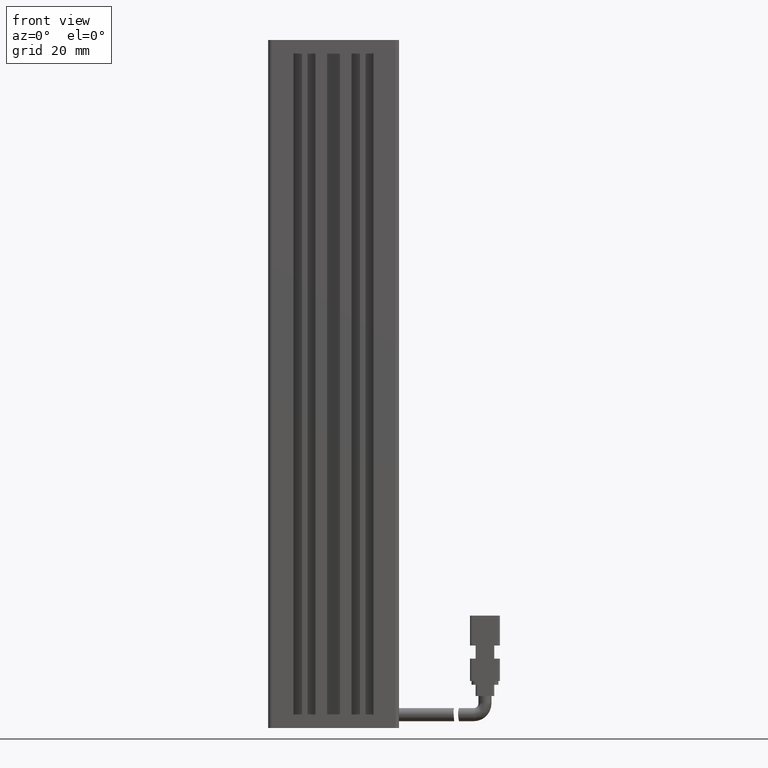
[diagram: clean part render]
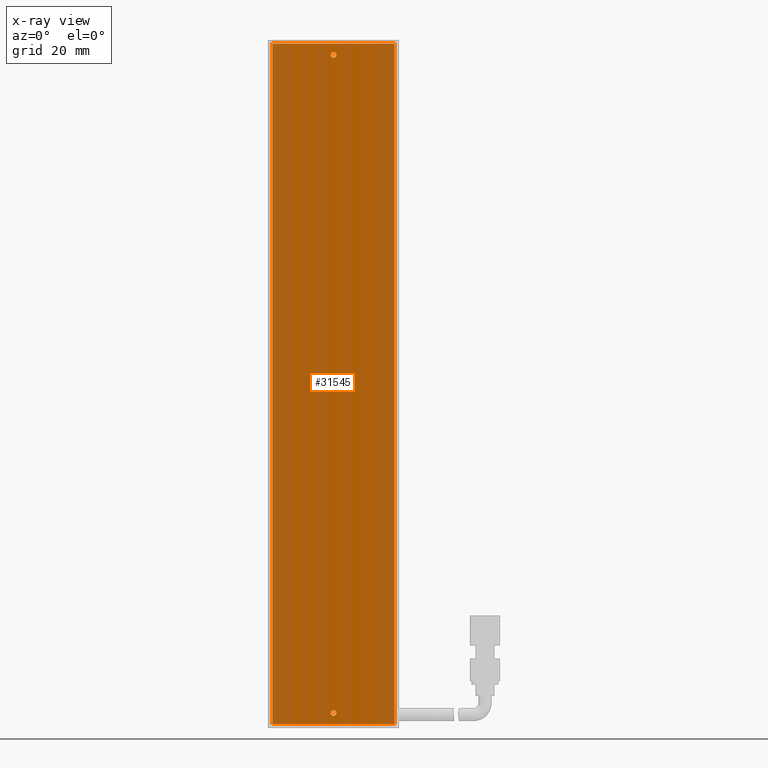
[diagram: x-ray — body ghosted, one internal face saturated and labeled with its STEP entity id]
A machine part, front view, then the same camera in x-ray: the body is ghosted and one INTERNAL B-rep face — a face not visible from any outside direction — is saturated and labeled: STEP entity #31545.
In plain terms, the highlighted planar face has unit normal (0, 1, 0).
Its self-contained STEP definition (entity closure, byte-faithful):
#2018 = LINE ( 'NONE', #31250, #5855 ) ;
#3994 = ORIENTED_EDGE ( 'NONE', *, *, #69774, .F. ) ;
#4006 = DIRECTION ( 'NONE',  ( 1.000000000000000000, 0.0000000000000000000, 1.387778780781445400E-016 ) ) ;
#4139 = PLANE ( 'NONE',  #65523 ) ;
#4851 = EDGE_CURVE ( 'NONE', #28927, #54681, #23525, .T. ) ;
#5855 = VECTOR ( 'NONE', #31538, 1000.000000000000000 ) ;
#9158 = ORIENTED_EDGE ( 'NONE', *, *, #56263, .F. ) ;
#10272 = CARTESIAN_POINT ( 'NONE',  ( 57.27537974683544100, 32.09073232304837800, -23.99999999999996100 ) ) ;
#10713 = EDGE_LOOP ( 'NONE', ( #25056, #59752 ) ) ;
#11221 = ORIENTED_EDGE ( 'NONE', *, *, #24218, .F. ) ;
#11229 = CARTESIAN_POINT ( 'NONE',  ( 40.92537974683543900, 32.09073232304837800, -202.2499999999999700 ) ) ;
#11487 = VERTEX_POINT ( 'NONE', #11229 ) ;
#12076 = VERTEX_POINT ( 'NONE', #43116 ) ;
#13379 = CARTESIAN_POINT ( 'NONE',  ( 40.92537974683543900, 32.09073232304837800, -203.7499999999999700 ) ) ;
#15294 = CARTESIAN_POINT ( 'NONE',  ( 40.92537974683542500, 32.09073232304837800, -26.99999999999996400 ) ) ;
#16444 = CARTESIAN_POINT ( 'NONE',  ( 40.92537974683543900, 32.09073232304837800, -202.9999999999999700 ) ) ;
#18162 = CARTESIAN_POINT ( 'NONE',  ( 24.57537974683541300, 32.09073232304837800, -23.99999999999996400 ) ) ;
#18500 = VECTOR ( 'NONE', #4006, 1000.000000000000000 ) ;
#20571 = DIRECTION ( 'NONE',  ( -0.0000000000000000000, -1.000000000000000000, -0.0000000000000000000 ) ) ;
#21578 = DIRECTION ( 'NONE',  ( -0.0000000000000000000, -1.000000000000000000, -0.0000000000000000000 ) ) ;
#21950 = CARTESIAN_POINT ( 'NONE',  ( 40.92537974683542500, 32.09073232304837800, -26.99999999999996400 ) ) ;
#23275 = FACE_BOUND ( 'NONE', #48187, .T. ) ;
#23525 = CIRCLE ( 'NONE', #32336, 0.7500000000000006700 ) ;
#24218 = EDGE_CURVE ( 'NONE', #11487, #73712, #46506, .T. ) ;
#25056 = ORIENTED_EDGE ( 'NONE', *, *, #4851, .F. ) ;
#25175 = FACE_OUTER_BOUND ( 'NONE', #46994, .T. ) ;
#28091 = VECTOR ( 'NONE', #30947, 1000.000000000000000 ) ;
#28622 = LINE ( 'NONE', #45744, #63728 ) ;
#28679 = DIRECTION ( 'NONE',  ( -0.0000000000000000000, -1.000000000000000000, -0.0000000000000000000 ) ) ;
#28927 = VERTEX_POINT ( 'NONE', #57686 ) ;
#30947 = DIRECTION ( 'NONE',  ( -1.387778780781445400E-016, 0.0000000000000000000, 1.000000000000000000 ) ) ;
#31044 = CIRCLE ( 'NONE', #45202, 0.7500000000000006700 ) ;
#31190 = CIRCLE ( 'NONE', #67158, 0.7500000000000006700 ) ;
#31250 = CARTESIAN_POINT ( 'NONE',  ( 57.27537974683546900, 32.09073232304837800, -205.9999999999999700 ) ) ;
#31538 = DIRECTION ( 'NONE',  ( -1.000000000000000000, -0.0000000000000000000, -1.387778780781445400E-016 ) ) ;
#31545 = ADVANCED_FACE ( 'NONE', ( #25175, #39567, #23275 ), #4139, .F. ) ;
#31657 = ORIENTED_EDGE ( 'NONE', *, *, #42744, .F. ) ;
#32336 = AXIS2_PLACEMENT_3D ( 'NONE', #21950, #64188, #39898 ) ;
#33903 = CARTESIAN_POINT ( 'NONE',  ( 40.92537974683543900, 32.09073232304837800, -202.9999999999999700 ) ) ;
#36269 = VERTEX_POINT ( 'NONE', #45624 ) ;
#36936 = ORIENTED_EDGE ( 'NONE', *, *, #42519, .F. ) ;
#37458 = VERTEX_POINT ( 'NONE', #58169 ) ;
#39567 = FACE_BOUND ( 'NONE', #10713, .T. ) ;
#39898 = DIRECTION ( 'NONE',  ( 0.0000000000000000000, 0.0000000000000000000, 1.000000000000000000 ) ) ;
#40575 = CARTESIAN_POINT ( 'NONE',  ( 57.27537974683544100, 32.09073232304837800, -23.99999999999996100 ) ) ;
#42519 = EDGE_CURVE ( 'NONE', #70292, #37458, #2018, .T. ) ;
#42539 = AXIS2_PLACEMENT_3D ( 'NONE', #33903, #21578, #70974 ) ;
#42744 = EDGE_CURVE ( 'NONE', #36269, #70292, #28622, .T. ) ;
#43116 = CARTESIAN_POINT ( 'NONE',  ( 24.57537974683542700, 32.09073232304837800, -23.99999999999996400 ) ) ;
#45202 = AXIS2_PLACEMENT_3D ( 'NONE', #15294, #20571, #45597 ) ;
#45597 = DIRECTION ( 'NONE',  ( 0.0000000000000000000, 0.0000000000000000000, 1.000000000000000000 ) ) ;
#45624 = CARTESIAN_POINT ( 'NONE',  ( 57.27537974683544100, 32.09073232304837800, -23.99999999999996100 ) ) ;
#45744 = CARTESIAN_POINT ( 'NONE',  ( 57.27537974683544100, 32.09073232304837800, -23.99999999999996100 ) ) ;
#46506 = CIRCLE ( 'NONE', #42539, 0.7500000000000006700 ) ;
#46994 = EDGE_LOOP ( 'NONE', ( #9158, #36936, #31657, #71631 ) ) ;
#48049 = LINE ( 'NONE', #18162, #28091 ) ;
#48187 = EDGE_LOOP ( 'NONE', ( #11221, #3994 ) ) ;
#49469 = EDGE_CURVE ( 'NONE', #54681, #28927, #31044, .T. ) ;
#49936 = LINE ( 'NONE', #40575, #18500 ) ;
#50078 = EDGE_CURVE ( 'NONE', #12076, #36269, #49936, .T. ) ;
#52793 = DIRECTION ( 'NONE',  ( 0.0000000000000000000, 1.000000000000000000, 0.0000000000000000000 ) ) ;
#52894 = CARTESIAN_POINT ( 'NONE',  ( 57.27537974683545500, 32.09073232304837800, -205.9999999999999700 ) ) ;
#53089 = DIRECTION ( 'NONE',  ( 0.0000000000000000000, 0.0000000000000000000, 1.000000000000000000 ) ) ;
#54108 = CARTESIAN_POINT ( 'NONE',  ( 40.92537974683542500, 32.09073232304837800, -27.74999999999996400 ) ) ;
#54681 = VERTEX_POINT ( 'NONE', #54108 ) ;
#56263 = EDGE_CURVE ( 'NONE', #37458, #12076, #48049, .T. ) ;
#57686 = CARTESIAN_POINT ( 'NONE',  ( 40.92537974683542500, 32.09073232304837800, -26.24999999999996400 ) ) ;
#58169 = CARTESIAN_POINT ( 'NONE',  ( 24.57537974683543800, 32.09073232304837800, -205.9999999999999700 ) ) ;
#59752 = ORIENTED_EDGE ( 'NONE', *, *, #49469, .F. ) ;
#63728 = VECTOR ( 'NONE', #76523, 1000.000000000000000 ) ;
#64188 = DIRECTION ( 'NONE',  ( -0.0000000000000000000, -1.000000000000000000, -0.0000000000000000000 ) ) ;
#65523 = AXIS2_PLACEMENT_3D ( 'NONE', #10272, #52793, #65779 ) ;
#65779 = DIRECTION ( 'NONE',  ( -1.387778780781445400E-016, 0.0000000000000000000, 1.000000000000000000 ) ) ;
#67158 = AXIS2_PLACEMENT_3D ( 'NONE', #16444, #28679, #53089 ) ;
#69774 = EDGE_CURVE ( 'NONE', #73712, #11487, #31190, .T. ) ;
#70292 = VERTEX_POINT ( 'NONE', #52894 ) ;
#70974 = DIRECTION ( 'NONE',  ( 0.0000000000000000000, 0.0000000000000000000, 1.000000000000000000 ) ) ;
#71631 = ORIENTED_EDGE ( 'NONE', *, *, #50078, .F. ) ;
#73712 = VERTEX_POINT ( 'NONE', #13379 ) ;
#76523 = DIRECTION ( 'NONE',  ( 1.387778780781445400E-016, -0.0000000000000000000, -1.000000000000000000 ) ) ;